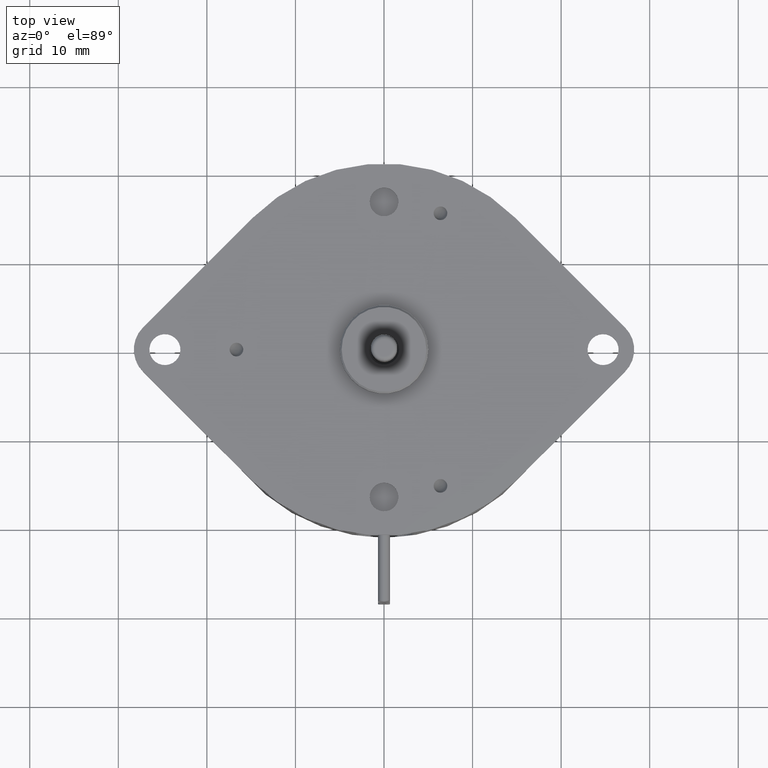
[diagram: clean part render]
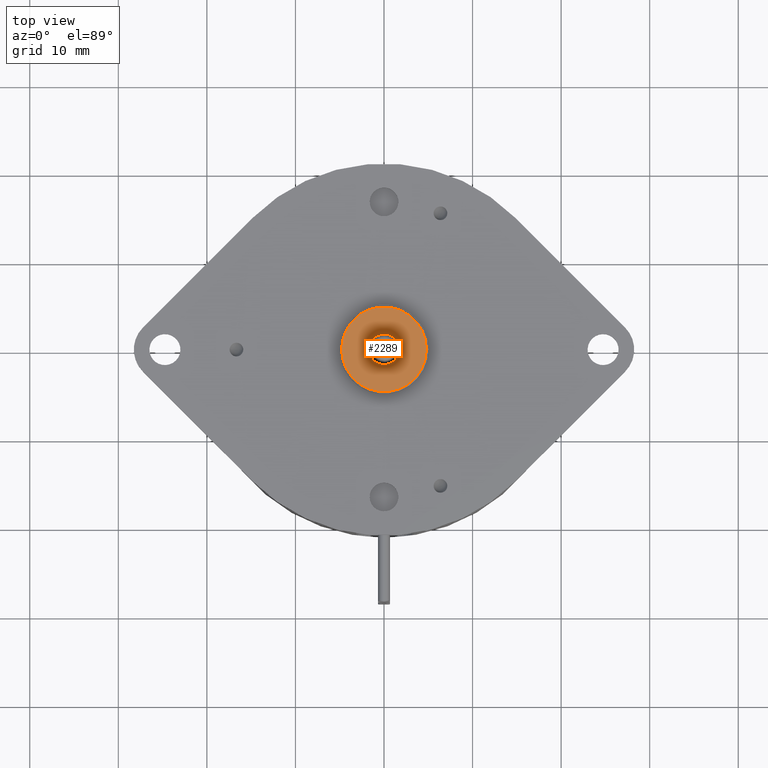
[diagram: same view with one face highlighted and labeled with its STEP entity id]
A machine part, top view. The second image highlights one B-rep face of the part: STEP entity #2289.
In plain terms, the highlighted planar face has unit normal (0, 0, 1).
Its self-contained STEP definition (entity closure, byte-faithful):
#1984=CARTESIAN_POINT('',(0.E0,0.E0,-1.32E-1));
#1985=DIRECTION('',(0.E0,0.E0,1.E0));
#1986=DIRECTION('',(0.E0,-1.E0,0.E0));
#1987=AXIS2_PLACEMENT_3D('',#1984,#1985,#1986);
#1989=CARTESIAN_POINT('',(0.E0,0.E0,-1.32E-1));
#1990=DIRECTION('',(0.E0,0.E0,1.E0));
#1991=DIRECTION('',(0.E0,1.E0,0.E0));
#1992=AXIS2_PLACEMENT_3D('',#1989,#1990,#1991);
#1994=CARTESIAN_POINT('',(0.E0,0.E0,-1.32E-1));
#1995=DIRECTION('',(0.E0,0.E0,-1.E0));
#1996=DIRECTION('',(0.E0,-1.E0,0.E0));
#1997=AXIS2_PLACEMENT_3D('',#1994,#1995,#1996);
#1999=CARTESIAN_POINT('',(0.E0,0.E0,-1.32E-1));
#2000=DIRECTION('',(0.E0,0.E0,-1.E0));
#2001=DIRECTION('',(0.E0,1.E0,0.E0));
#2002=AXIS2_PLACEMENT_3D('',#1999,#2000,#2001);
#2172=CARTESIAN_POINT('',(0.E0,6.759099631177E-2,-1.32E-1));
#2173=VERTEX_POINT('',#2172);
#2174=CARTESIAN_POINT('',(0.E0,-6.759099631177E-2,-1.32E-1));
#2175=VERTEX_POINT('',#2174);
#2176=CARTESIAN_POINT('',(0.E0,-1.884590036882E-1,-1.32E-1));
#2177=CARTESIAN_POINT('',(0.E0,1.884590036882E-1,-1.32E-1));
#2178=VERTEX_POINT('',#2176);
#2179=VERTEX_POINT('',#2177);
#2274=CARTESIAN_POINT('',(0.E0,0.E0,-1.32E-1));
#2275=DIRECTION('',(0.E0,0.E0,-1.E0));
#2276=DIRECTION('',(0.E0,-1.E0,0.E0));
#2277=AXIS2_PLACEMENT_3D('',#2274,#2275,#2276);
#2278=PLANE('',#2277);
#2280=ORIENTED_EDGE('',*,*,#2279,.T.);
#2282=ORIENTED_EDGE('',*,*,#2281,.T.);
#2283=EDGE_LOOP('',(#2280,#2282));
#2284=FACE_OUTER_BOUND('',#2283,.F.);
#2285=ORIENTED_EDGE('',*,*,#2253,.T.);
#2286=ORIENTED_EDGE('',*,*,#2269,.T.);
#2287=EDGE_LOOP('',(#2285,#2286));
#2288=FACE_BOUND('',#2287,.F.);
#2289=ADVANCED_FACE('',(#2284,#2288),#2278,.T.);
#1988=CIRCLE('',#1987,1.884590036882E-1);
#1993=CIRCLE('',#1992,1.884590036882E-1);
#1998=CIRCLE('',#1997,6.759099631177E-2);
#2003=CIRCLE('',#2002,6.759099631177E-2);
#2253=EDGE_CURVE('',#2175,#2173,#1998,.T.);
#2269=EDGE_CURVE('',#2173,#2175,#2003,.T.);
#2279=EDGE_CURVE('',#2178,#2179,#1988,.T.);
#2281=EDGE_CURVE('',#2179,#2178,#1993,.T.);